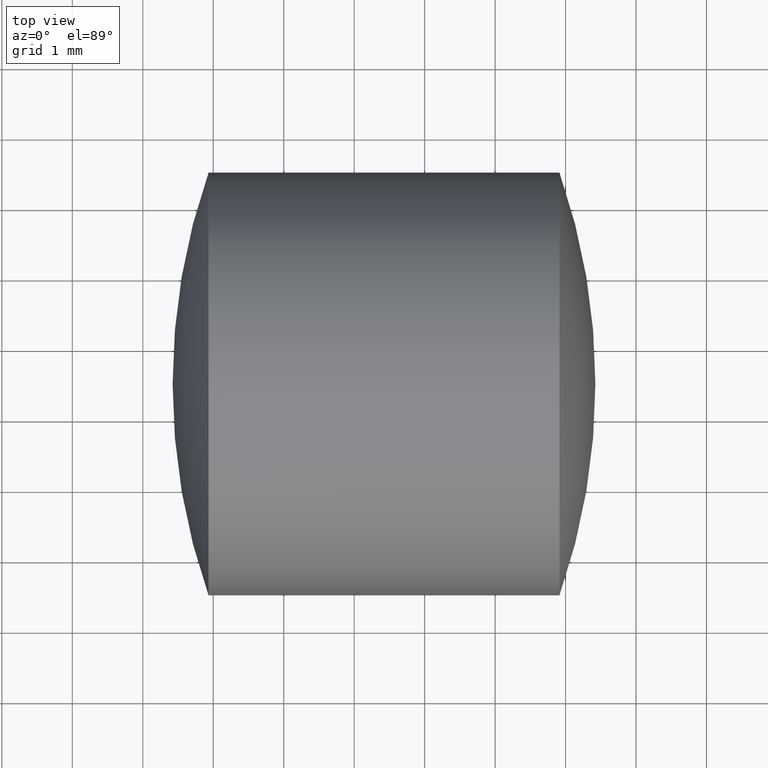
[diagram: clean part render]
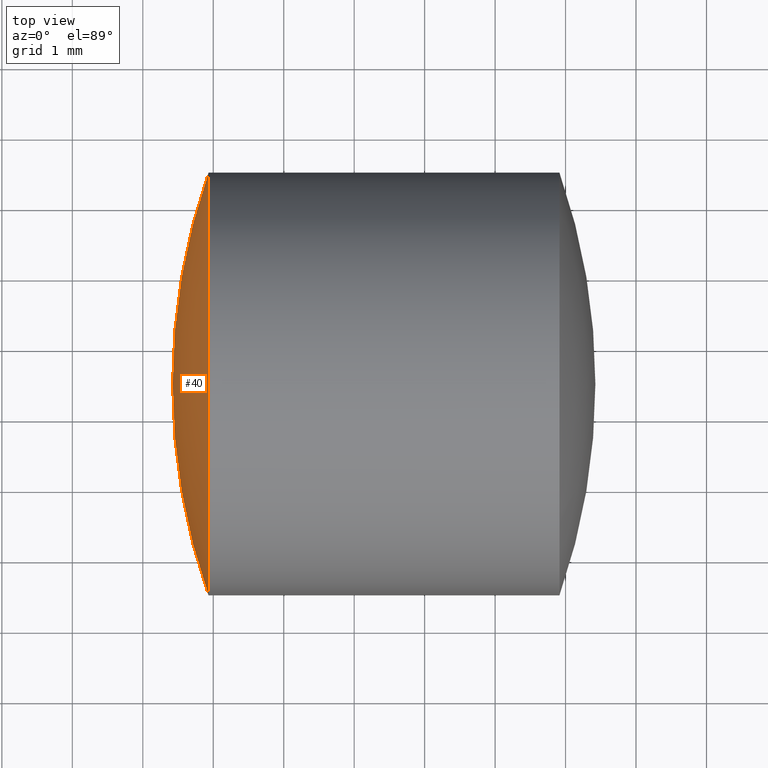
[diagram: same view with one face highlighted and labeled with its STEP entity id]
A machine part, top view. The second image highlights one B-rep face of the part: STEP entity #40.
In plain terms, the highlighted spherical surface has radius 9.0787 mm.
Its self-contained STEP definition (entity closure, byte-faithful):
#2 = SPHERICAL_SURFACE ( 'NONE', #71, 9.078662146976359500 ) ;
#3 = EDGE_CURVE ( 'NONE', #282, #68, #256, .T. ) ;
#15 = ORIENTED_EDGE ( 'NONE', *, *, #31, .F. ) ;
#22 = FACE_OUTER_BOUND ( 'NONE', #85, .T. ) ;
#31 = EDGE_CURVE ( 'NONE', #68, #245, #82, .T. ) ;
#36 = DIRECTION ( 'NONE',  ( 0.0000000000000000000, 0.0000000000000000000, 1.000000000000000000 ) ) ;
#40 = ADVANCED_FACE ( 'NONE', ( #22 ), #2, .T. ) ;
#41 = CARTESIAN_POINT ( 'NONE',  ( 17.42320994893274000, 11.48412513980631100, 0.0000000000000000000 ) ) ;
#56 = AXIS2_PLACEMENT_3D ( 'NONE', #174, #177, #216 ) ;
#68 = VERTEX_POINT ( 'NONE', #132 ) ;
#71 = AXIS2_PLACEMENT_3D ( 'NONE', #130, #36, #290 ) ;
#82 = CIRCLE ( 'NONE', #56, 3.000001032702598100 ) ;
#85 = EDGE_LOOP ( 'NONE', ( #147, #286, #15 ) ) ;
#87 = CARTESIAN_POINT ( 'NONE',  ( 26.50187209590910000, 11.48412513980632000, 0.0000000000000000000 ) ) ;
#105 = CARTESIAN_POINT ( 'NONE',  ( 26.50187209590910000, 11.48412513980632000, 0.0000000000000000000 ) ) ;
#110 = DIRECTION ( 'NONE',  ( 0.0000000000000000000, -1.000000000000000000, 1.224646799147353200E-016 ) ) ;
#130 = CARTESIAN_POINT ( 'NONE',  ( 26.50187209590910000, 11.48412513980632000, 0.0000000000000000000 ) ) ;
#132 = CARTESIAN_POINT ( 'NONE',  ( 17.93320241020381200, 14.48412617250891400, 0.0000000000000000000 ) ) ;
#137 = CARTESIAN_POINT ( 'NONE',  ( 17.93320241020381900, 8.484124107103717400, 3.673941662137992000E-016 ) ) ;
#147 = ORIENTED_EDGE ( 'NONE', *, *, #3, .F. ) ;
#151 = DIRECTION ( 'NONE',  ( -1.000000000000000000, 0.0000000000000000000, 0.0000000000000000000 ) ) ;
#160 = AXIS2_PLACEMENT_3D ( 'NONE', #105, #217, #151 ) ;
#171 = AXIS2_PLACEMENT_3D ( 'NONE', #87, #272, #110 ) ;
#174 = CARTESIAN_POINT ( 'NONE',  ( 17.93320241020381500, 11.48412513980631500, 0.0000000000000000000 ) ) ;
#177 = DIRECTION ( 'NONE',  ( 1.000000000000000000, 1.031215386547264900E-015, -0.0000000000000000000 ) ) ;
#216 = DIRECTION ( 'NONE',  ( -1.156481919217243800E-015, 1.000000000000000000, 0.0000000000000000000 ) ) ;
#217 = DIRECTION ( 'NONE',  ( -0.0000000000000000000, 0.0000000000000000000, -1.000000000000000000 ) ) ;
#245 = VERTEX_POINT ( 'NONE', #137 ) ;
#256 = CIRCLE ( 'NONE', #160, 9.078662146976359500 ) ;
#272 = DIRECTION ( 'NONE',  ( -1.262874622366608600E-031, 1.224646799147353200E-016, 1.000000000000000000 ) ) ;
#282 = VERTEX_POINT ( 'NONE', #41 ) ;
#284 = EDGE_CURVE ( 'NONE', #282, #245, #299, .T. ) ;
#286 = ORIENTED_EDGE ( 'NONE', *, *, #284, .T. ) ;
#290 = DIRECTION ( 'NONE',  ( -1.146461966241064700E-015, 1.000000000000000000, 0.0000000000000000000 ) ) ;
#299 = CIRCLE ( 'NONE', #171, 9.078662146976359500 ) ;